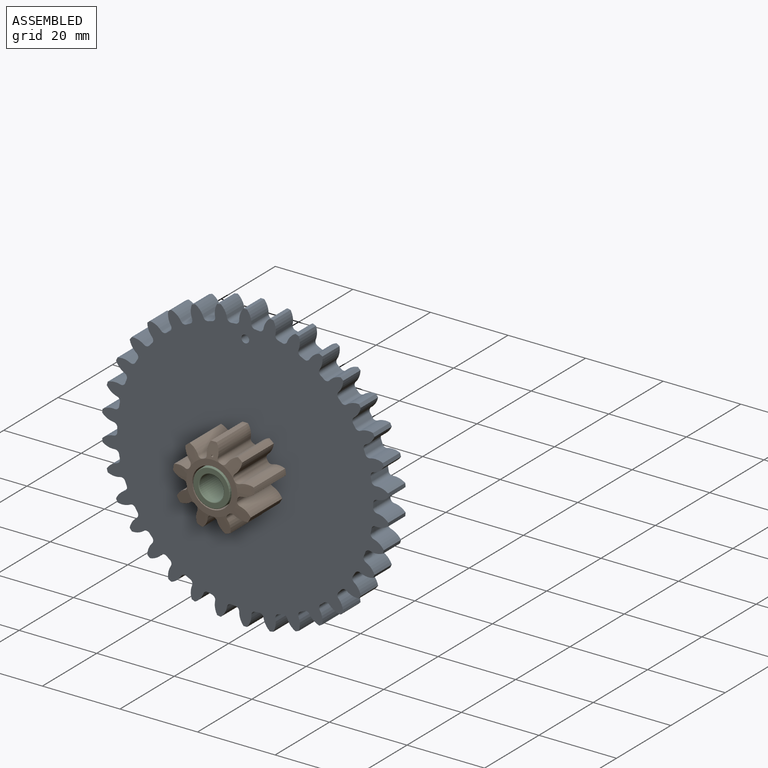
[diagram: assembled view]
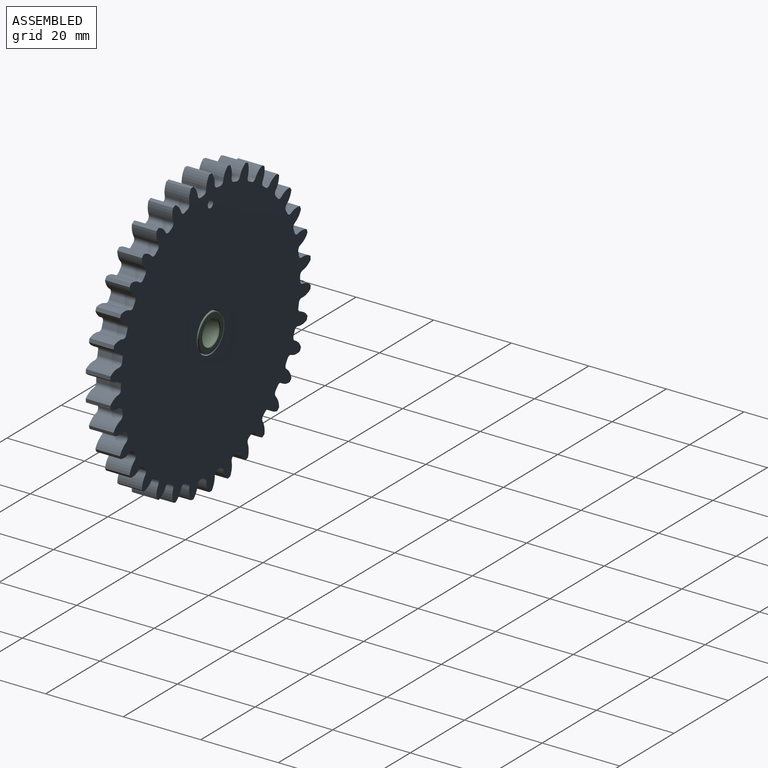
[diagram: assembled view, second angle]
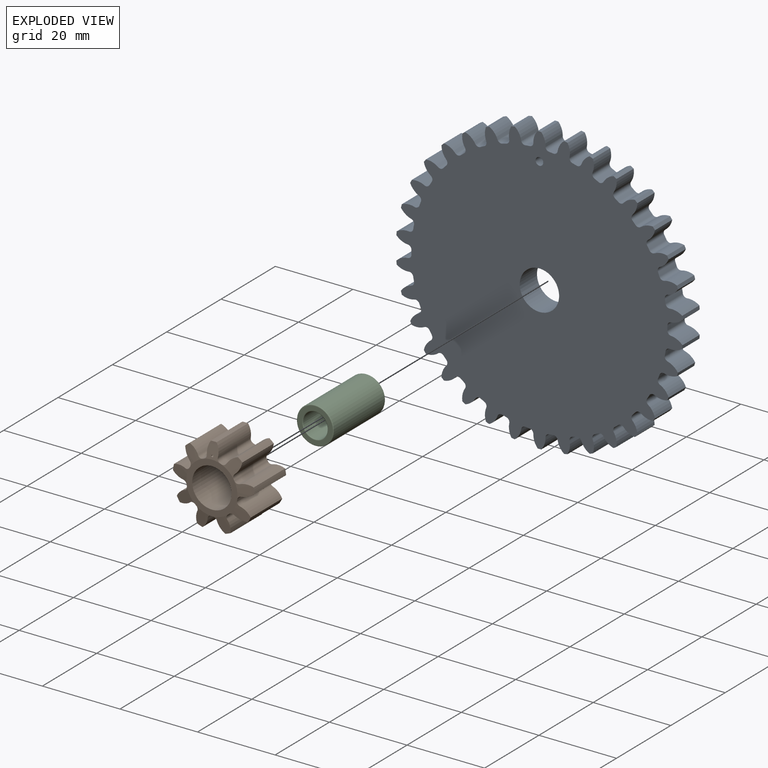
[diagram: exploded view]
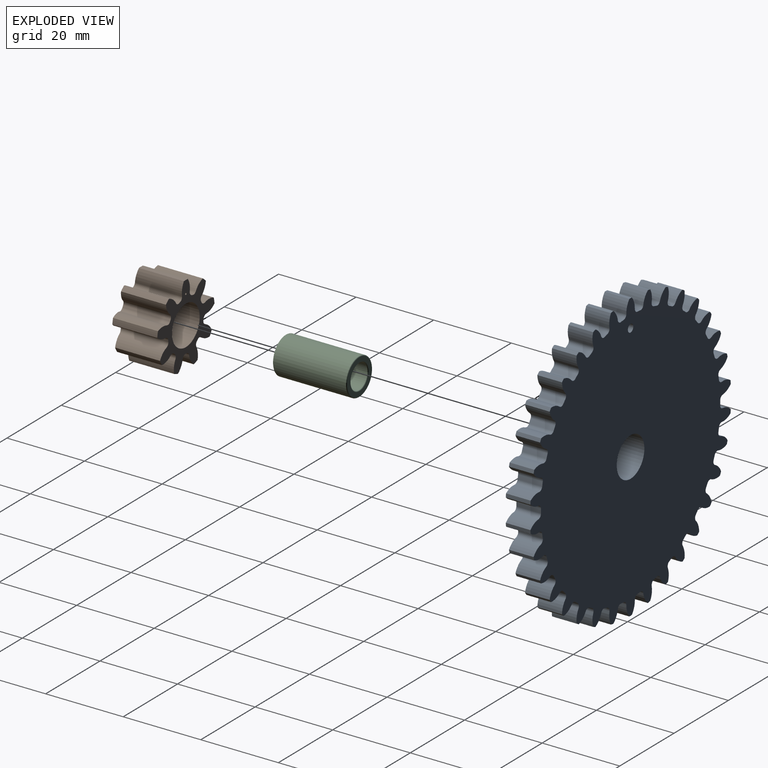
[diagram: exploded view, second angle]
ASSEMBLY  parts=3 mates=2
PART A: 208 faces, bbox 73.8x6.4x74 mm
  f0: cylinder r=33mm len=6.35mm, axis (0,1,0), area 7mm2, adj f34,f35,f40,f204
  f1: cylinder r=33mm len=6.35mm, axis (0,1,0), area 7mm2, adj f34,f35,f199,f205
  f2: cylinder r=33mm len=6.35mm, axis (0,1,0), area 7mm2, adj f34,f35,f194,f200
  f3: cylinder r=33mm len=6.35mm, axis (0,1,0), area 7mm2, adj f34,f35,f189,f195
  f4: cylinder r=33mm len=6.35mm, axis (0,1,0), area 7mm2, adj f34,f35,f184,f190
  f5: cylinder r=33mm len=6.35mm, axis (0,1,0), area 7mm2, adj f34,f35,f179,f185
  f6: cylinder r=33mm len=6.35mm, axis (0,1,0), area 7mm2, adj f34,f35,f174,f180
  f7: cylinder r=33mm len=6.35mm, axis (0,1,0), area 7mm2, adj f34,f35,f169,f175
  f8: cylinder r=33mm len=6.35mm, axis (0,1,0), area 7mm2, adj f34,f35,f164,f170
  f9: cylinder r=33mm len=6.35mm, axis (0,1,0), area 7mm2, adj f34,f35,f159,f165
  f10: cylinder r=33mm len=6.35mm, axis (0,1,0), area 7mm2, adj f34,f35,f154,f160
  f11: cylinder r=33mm len=6.35mm, axis (0,1,0), area 7mm2, adj f34,f35,f149,f155
  f12: cylinder r=33mm len=6.35mm, axis (0,1,0), area 7mm2, adj f34,f35,f144,f150
  f13: cylinder r=33mm len=6.35mm, axis (0,1,0), area 7mm2, adj f34,f35,f139,f145
  f14: cylinder r=33mm len=6.35mm, axis (0,1,0), area 7mm2, adj f34,f35,f134,f140
  f15: cylinder r=33mm len=6.35mm, axis (0,1,0), area 7mm2, adj f34,f35,f129,f135
  f16: cylinder r=33mm len=6.35mm, axis (0,1,0), area 7mm2, adj f34,f35,f124,f130
  f17: cylinder r=33mm len=6.35mm, axis (0,1,0), area 7mm2, adj f34,f35,f119,f125
  f18: cylinder r=33mm len=6.35mm, axis (0,1,0), area 7mm2, adj f34,f35,f114,f120
  f19: cylinder r=33mm len=6.35mm, axis (0,1,0), area 7mm2, adj f34,f35,f109,f115
  f20: cylinder r=33mm len=6.35mm, axis (0,1,0), area 7mm2, adj f34,f35,f104,f110
  f21: cylinder r=33mm len=6.35mm, axis (0,1,0), area 7mm2, adj f34,f35,f99,f105
  f22: cylinder r=33mm len=6.35mm, axis (0,1,0), area 7mm2, adj f34,f35,f94,f100
  f23: cylinder r=33mm len=6.35mm, axis (0,1,0), area 7mm2, adj f34,f35,f89,f95
  f24: cylinder r=33mm len=6.35mm, axis (0,1,0), area 7mm2, adj f34,f35,f84,f90
  f25: cylinder r=33mm len=6.35mm, axis (0,1,0), area 7mm2, adj f34,f35,f79,f85
  f26: cylinder r=33mm len=6.35mm, axis (0,1,0), area 7mm2, adj f34,f35,f74,f80
  f27: cylinder r=33mm len=6.35mm, axis (0,1,0), area 7mm2, adj f34,f35,f69,f75
  f28: cylinder r=33mm len=6.35mm, axis (0,1,0), area 7mm2, adj f34,f35,f64,f70
  f29: cylinder r=33mm len=6.35mm, axis (0,1,0), area 7mm2, adj f34,f35,f59,f65
  f30: cylinder r=33mm len=6.35mm, axis (0,1,0), area 7mm2, adj f34,f35,f54,f60
  f31: cylinder r=33mm len=6.35mm, axis (0,1,0), area 7mm2, adj f34,f35,f49,f55
  f32: cylinder r=33mm len=6.35mm, axis (0,1,0), area 7mm2, adj f34,f35,f44,f50
  f33: cylinder r=33mm len=6.35mm, axis (0,1,0), area 7mm2, adj f34,f35,f39,f45
  f34: plane 74x73.76mm, normal (0,-1,0), area 3706.2mm2, adj f0,f1,f2,f3,f4,f5,f6,f7
  f35: plane 74x73.76mm, normal (0,1,0), area 3706.2mm2, adj f0,f1,f2,f3,f4,f5,f6,f7
  f36: cylinder r=4.53mm len=6.35mm, axis (0,1,0), area 21.2mm2, adj f34,f35,f37,f40
  f37: cylinder r=37mm len=6.35mm, axis (0,1,0), area 5.8mm2, adj f34,f35,f36,f38
  f38: cylinder r=4.53mm len=6.35mm, axis (0,1,0), area 21.2mm2, adj f34,f35,f37,f39
  f39: cylinder r=1mm len=6.35mm, axis (0,1,0), area 9.6mm2, adj f33,f34,f35,f38
  f40: cylinder r=1mm len=6.35mm, axis (0,1,0), area 9.6mm2, adj f0,f34,f35,f36
  f41: cylinder r=4.53mm len=6.35mm, axis (0,1,0), area 21.2mm2, adj f34,f35,f42,f45
  f42: cylinder r=37mm len=6.35mm, axis (0,1,0), area 5.8mm2, adj f34,f35,f41,f43
  f43: cylinder r=4.53mm len=6.35mm, axis (0,1,0), area 21.2mm2, adj f34,f35,f42,f44
  f44: cylinder r=1mm len=6.35mm, axis (0,1,0), area 9.6mm2, adj f32,f34,f35,f43
  f45: cylinder r=1mm len=6.35mm, axis (0,1,0), area 9.6mm2, adj f33,f34,f35,f41
  f46: cylinder r=4.53mm len=6.35mm, axis (0,1,0), area 21.2mm2, adj f34,f35,f47,f50
  f47: cylinder r=37mm len=6.35mm, axis (0,1,0), area 5.8mm2, adj f34,f35,f46,f48
  f48: cylinder r=4.53mm len=6.35mm, axis (0,1,0), area 21.2mm2, adj f34,f35,f47,f49
  f49: cylinder r=1mm len=6.35mm, axis (0,1,0), area 9.6mm2, adj f31,f34,f35,f48
  f50: cylinder r=1mm len=6.35mm, axis (0,1,0), area 9.6mm2, adj f32,f34,f35,f46
  f51: cylinder r=4.53mm len=6.35mm, axis (0,1,0), area 21.2mm2, adj f34,f35,f52,f55
  f52: cylinder r=37mm len=6.35mm, axis (0,1,0), area 5.8mm2, adj f34,f35,f51,f53
  f53: cylinder r=4.53mm len=6.35mm, axis (0,1,0), area 21.2mm2, adj f34,f35,f52,f54
  f54: cylinder r=1mm len=6.35mm, axis (0,1,0), area 9.6mm2, adj f30,f34,f35,f53
  f55: cylinder r=1mm len=6.35mm, axis (0,1,0), area 9.6mm2, adj f31,f34,f35,f51
  f56: cylinder r=4.53mm len=6.35mm, axis (0,1,0), area 21.2mm2, adj f34,f35,f57,f60
  f57: cylinder r=37mm len=6.35mm, axis (0,1,0), area 5.8mm2, adj f34,f35,f56,f58
  f58: cylinder r=4.53mm len=6.35mm, axis (0,1,0), area 21.2mm2, adj f34,f35,f57,f59
  f59: cylinder r=1mm len=6.35mm, axis (0,1,0), area 9.6mm2, adj f29,f34,f35,f58
  f60: cylinder r=1mm len=6.35mm, axis (0,1,0), area 9.6mm2, adj f30,f34,f35,f56
  f61: cylinder r=4.53mm len=6.35mm, axis (0,1,0), area 21.2mm2, adj f34,f35,f62,f65
  f62: cylinder r=37mm len=6.35mm, axis (0,1,0), area 5.8mm2, adj f34,f35,f61,f63
  f63: cylinder r=4.53mm len=6.35mm, axis (0,1,0), area 21.2mm2, adj f34,f35,f62,f64
  f64: cylinder r=1mm len=6.35mm, axis (0,1,0), area 9.6mm2, adj f28,f34,f35,f63
  f65: cylinder r=1mm len=6.35mm, axis (0,1,0), area 9.6mm2, adj f29,f34,f35,f61
  f66: cylinder r=4.53mm len=6.35mm, axis (0,1,0), area 21.2mm2, adj f34,f35,f67,f70
  f67: cylinder r=37mm len=6.35mm, axis (0,1,0), area 5.8mm2, adj f34,f35,f66,f68
  f68: cylinder r=4.53mm len=6.35mm, axis (0,1,0), area 21.2mm2, adj f34,f35,f67,f69
  f69: cylinder r=1mm len=6.35mm, axis (0,1,0), area 9.6mm2, adj f27,f34,f35,f68
  f70: cylinder r=1mm len=6.35mm, axis (0,1,0), area 9.6mm2, adj f28,f34,f35,f66
  f71: cylinder r=4.53mm len=6.35mm, axis (0,1,0), area 21.2mm2, adj f34,f35,f72,f75
  f72: cylinder r=37mm len=6.35mm, axis (0,1,0), area 5.8mm2, adj f34,f35,f71,f73
  f73: cylinder r=4.53mm len=6.35mm, axis (0,1,0), area 21.2mm2, adj f34,f35,f72,f74
  f74: cylinder r=1mm len=6.35mm, axis (0,1,0), area 9.6mm2, adj f26,f34,f35,f73
  f75: cylinder r=1mm len=6.35mm, axis (0,1,0), area 9.6mm2, adj f27,f34,f35,f71
  f76: cylinder r=4.53mm len=6.35mm, axis (0,1,0), area 21.2mm2, adj f34,f35,f77,f80
  f77: cylinder r=37mm len=6.35mm, axis (0,1,0), area 5.8mm2, adj f34,f35,f76,f78
  f78: cylinder r=4.53mm len=6.35mm, axis (0,1,0), area 21.2mm2, adj f34,f35,f77,f79
  f79: cylinder r=1mm len=6.35mm, axis (0,1,0), area 9.6mm2, adj f25,f34,f35,f78
  f80: cylinder r=1mm len=6.35mm, axis (0,1,0), area 9.6mm2, adj f26,f34,f35,f76
  f81: cylinder r=4.53mm len=6.35mm, axis (0,1,0), area 21.2mm2, adj f34,f35,f82,f85
  f82: cylinder r=37mm len=6.35mm, axis (0,1,0), area 5.8mm2, adj f34,f35,f81,f83
  f83: cylinder r=4.53mm len=6.35mm, axis (0,1,0), area 21.2mm2, adj f34,f35,f82,f84
  f84: cylinder r=1mm len=6.35mm, axis (0,1,0), area 9.6mm2, adj f24,f34,f35,f83
  f85: cylinder r=1mm len=6.35mm, axis (0,1,0), area 9.6mm2, adj f25,f34,f35,f81
  f86: cylinder r=4.53mm len=6.35mm, axis (0,1,0), area 21.2mm2, adj f34,f35,f87,f90
  f87: cylinder r=37mm len=6.35mm, axis (0,1,0), area 5.8mm2, adj f34,f35,f86,f88
  f88: cylinder r=4.53mm len=6.35mm, axis (0,1,0), area 21.2mm2, adj f34,f35,f87,f89
  f89: cylinder r=1mm len=6.35mm, axis (0,1,0), area 9.6mm2, adj f23,f34,f35,f88
  f90: cylinder r=1mm len=6.35mm, axis (0,1,0), area 9.6mm2, adj f24,f34,f35,f86
  f91: cylinder r=4.53mm len=6.35mm, axis (0,1,0), area 21.2mm2, adj f34,f35,f92,f95
  f92: cylinder r=37mm len=6.35mm, axis (0,1,0), area 5.8mm2, adj f34,f35,f91,f93
  f93: cylinder r=4.53mm len=6.35mm, axis (0,1,0), area 21.2mm2, adj f34,f35,f92,f94
  f94: cylinder r=1mm len=6.35mm, axis (0,1,0), area 9.6mm2, adj f22,f34,f35,f93
  f95: cylinder r=1mm len=6.35mm, axis (0,1,0), area 9.6mm2, adj f23,f34,f35,f91
  f96: cylinder r=4.53mm len=6.35mm, axis (0,1,0), area 21.2mm2, adj f34,f35,f97,f100
  f97: cylinder r=37mm len=6.35mm, axis (0,1,0), area 5.8mm2, adj f34,f35,f96,f98
  f98: cylinder r=4.53mm len=6.35mm, axis (0,1,0), area 21.2mm2, adj f34,f35,f97,f99
  f99: cylinder r=1mm len=6.35mm, axis (0,1,0), area 9.6mm2, adj f21,f34,f35,f98
  f100: cylinder r=1mm len=6.35mm, axis (0,1,0), area 9.6mm2, adj f22,f34,f35,f96
  f101: cylinder r=4.53mm len=6.35mm, axis (0,1,0), area 21.2mm2, adj f34,f35,f102,f105
  f102: cylinder r=37mm len=6.35mm, axis (0,1,0), area 5.8mm2, adj f34,f35,f101,f103
  f103: cylinder r=4.53mm len=6.35mm, axis (0,1,0), area 21.2mm2, adj f34,f35,f102,f104
  f104: cylinder r=1mm len=6.35mm, axis (0,1,0), area 9.6mm2, adj f20,f34,f35,f103
  f105: cylinder r=1mm len=6.35mm, axis (0,1,0), area 9.6mm2, adj f21,f34,f35,f101
  f106: cylinder r=4.53mm len=6.35mm, axis (0,1,0), area 21.2mm2, adj f34,f35,f107,f110
  f107: cylinder r=37mm len=6.35mm, axis (0,1,0), area 5.8mm2, adj f34,f35,f106,f108
  f108: cylinder r=4.53mm len=6.35mm, axis (0,1,0), area 21.2mm2, adj f34,f35,f107,f109
  f109: cylinder r=1mm len=6.35mm, axis (0,1,0), area 9.6mm2, adj f19,f34,f35,f108
  f110: cylinder r=1mm len=6.35mm, axis (0,1,0), area 9.6mm2, adj f20,f34,f35,f106
  f111: cylinder r=4.53mm len=6.35mm, axis (0,1,0), area 21.2mm2, adj f34,f35,f112,f115
  f112: cylinder r=37mm len=6.35mm, axis (0,1,0), area 5.8mm2, adj f34,f35,f111,f113
  f113: cylinder r=4.53mm len=6.35mm, axis (0,1,0), area 21.2mm2, adj f34,f35,f112,f114
  f114: cylinder r=1mm len=6.35mm, axis (0,1,0), area 9.6mm2, adj f18,f34,f35,f113
  f115: cylinder r=1mm len=6.35mm, axis (0,1,0), area 9.6mm2, adj f19,f34,f35,f111
  f116: cylinder r=4.53mm len=6.35mm, axis (0,1,0), area 21.2mm2, adj f34,f35,f117,f120
  f117: cylinder r=37mm len=6.35mm, axis (0,1,0), area 5.8mm2, adj f34,f35,f116,f118
  f118: cylinder r=4.53mm len=6.35mm, axis (0,1,0), area 21.2mm2, adj f34,f35,f117,f119
  f119: cylinder r=1mm len=6.35mm, axis (0,1,0), area 9.6mm2, adj f17,f34,f35,f118
  f120: cylinder r=1mm len=6.35mm, axis (0,1,0), area 9.6mm2, adj f18,f34,f35,f116
  f121: cylinder r=4.53mm len=6.35mm, axis (0,1,0), area 21.2mm2, adj f34,f35,f122,f125
  f122: cylinder r=37mm len=6.35mm, axis (0,1,0), area 5.8mm2, adj f34,f35,f121,f123
  f123: cylinder r=4.53mm len=6.35mm, axis (0,1,0), area 21.2mm2, adj f34,f35,f122,f124
  f124: cylinder r=1mm len=6.35mm, axis (0,1,0), area 9.6mm2, adj f16,f34,f35,f123
  f125: cylinder r=1mm len=6.35mm, axis (0,1,0), area 9.6mm2, adj f17,f34,f35,f121
  f126: cylinder r=4.53mm len=6.35mm, axis (0,1,0), area 21.2mm2, adj f34,f35,f127,f130
  f127: cylinder r=37mm len=6.35mm, axis (0,1,0), area 5.8mm2, adj f34,f35,f126,f128
  f128: cylinder r=4.53mm len=6.35mm, axis (0,1,0), area 21.2mm2, adj f34,f35,f127,f129
  f129: cylinder r=1mm len=6.35mm, axis (0,1,0), area 9.6mm2, adj f15,f34,f35,f128
  f130: cylinder r=1mm len=6.35mm, axis (0,1,0), area 9.6mm2, adj f16,f34,f35,f126
  f131: cylinder r=4.53mm len=6.35mm, axis (0,1,0), area 21.2mm2, adj f34,f35,f132,f135
  f132: cylinder r=37mm len=6.35mm, axis (0,1,0), area 5.8mm2, adj f34,f35,f131,f133
  f133: cylinder r=4.53mm len=6.35mm, axis (0,1,0), area 21.2mm2, adj f34,f35,f132,f134
  f134: cylinder r=1mm len=6.35mm, axis (0,1,0), area 9.6mm2, adj f14,f34,f35,f133
  f135: cylinder r=1mm len=6.35mm, axis (0,1,0), area 9.6mm2, adj f15,f34,f35,f131
  f136: cylinder r=4.53mm len=6.35mm, axis (0,1,0), area 21.2mm2, adj f34,f35,f137,f140
  f137: cylinder r=37mm len=6.35mm, axis (0,1,0), area 5.8mm2, adj f34,f35,f136,f138
  f138: cylinder r=4.53mm len=6.35mm, axis (0,1,0), area 21.2mm2, adj f34,f35,f137,f139
  f139: cylinder r=1mm len=6.35mm, axis (0,1,0), area 9.6mm2, adj f13,f34,f35,f138
  f140: cylinder r=1mm len=6.35mm, axis (0,1,0), area 9.6mm2, adj f14,f34,f35,f136
  f141: cylinder r=4.53mm len=6.35mm, axis (0,1,0), area 21.2mm2, adj f34,f35,f142,f145
  f142: cylinder r=37mm len=6.35mm, axis (0,1,0), area 5.8mm2, adj f34,f35,f141,f143
  f143: cylinder r=4.53mm len=6.35mm, axis (0,1,0), area 21.2mm2, adj f34,f35,f142,f144
  f144: cylinder r=1mm len=6.35mm, axis (0,1,0), area 9.6mm2, adj f12,f34,f35,f143
  f145: cylinder r=1mm len=6.35mm, axis (0,1,0), area 9.6mm2, adj f13,f34,f35,f141
  f146: cylinder r=4.53mm len=6.35mm, axis (0,1,0), area 21.2mm2, adj f34,f35,f147,f150
  f147: cylinder r=37mm len=6.35mm, axis (0,1,0), area 5.8mm2, adj f34,f35,f146,f148
  f148: cylinder r=4.53mm len=6.35mm, axis (0,1,0), area 21.2mm2, adj f34,f35,f147,f149
  f149: cylinder r=1mm len=6.35mm, axis (0,1,0), area 9.6mm2, adj f11,f34,f35,f148
  f150: cylinder r=1mm len=6.35mm, axis (0,1,0), area 9.6mm2, adj f12,f34,f35,f146
  f151: cylinder r=4.53mm len=6.35mm, axis (0,1,0), area 21.2mm2, adj f34,f35,f152,f155
  f152: cylinder r=37mm len=6.35mm, axis (0,1,0), area 5.8mm2, adj f34,f35,f151,f153
  f153: cylinder r=4.53mm len=6.35mm, axis (0,1,0), area 21.2mm2, adj f34,f35,f152,f154
  f154: cylinder r=1mm len=6.35mm, axis (0,1,0), area 9.6mm2, adj f10,f34,f35,f153
  f155: cylinder r=1mm len=6.35mm, axis (0,1,0), area 9.6mm2, adj f11,f34,f35,f151
  f156: cylinder r=4.53mm len=6.35mm, axis (0,1,0), area 21.2mm2, adj f34,f35,f157,f160
  f157: cylinder r=37mm len=6.35mm, axis (0,1,0), area 5.8mm2, adj f34,f35,f156,f158
  f158: cylinder r=4.53mm len=6.35mm, axis (0,1,0), area 21.2mm2, adj f34,f35,f157,f159
  f159: cylinder r=1mm len=6.35mm, axis (0,1,0), area 9.6mm2, adj f9,f34,f35,f158
  f160: cylinder r=1mm len=6.35mm, axis (0,1,0), area 9.6mm2, adj f10,f34,f35,f156
  f161: cylinder r=4.53mm len=6.35mm, axis (0,1,0), area 21.2mm2, adj f34,f35,f162,f165
  f162: cylinder r=37mm len=6.35mm, axis (0,1,0), area 5.8mm2, adj f34,f35,f161,f163
  f163: cylinder r=4.53mm len=6.35mm, axis (0,1,0), area 21.2mm2, adj f34,f35,f162,f164
  f164: cylinder r=1mm len=6.35mm, axis (0,1,0), area 9.6mm2, adj f8,f34,f35,f163
  f165: cylinder r=1mm len=6.35mm, axis (0,1,0), area 9.6mm2, adj f9,f34,f35,f161
  f166: cylinder r=4.53mm len=6.35mm, axis (0,1,0), area 21.2mm2, adj f34,f35,f167,f170
  f167: cylinder r=37mm len=6.35mm, axis (0,1,0), area 5.8mm2, adj f34,f35,f166,f168
  f168: cylinder r=4.53mm len=6.35mm, axis (0,1,0), area 21.2mm2, adj f34,f35,f167,f169
  f169: cylinder r=1mm len=6.35mm, axis (0,1,0), area 9.6mm2, adj f7,f34,f35,f168
  f170: cylinder r=1mm len=6.35mm, axis (0,1,0), area 9.6mm2, adj f8,f34,f35,f166
  f171: cylinder r=4.53mm len=6.35mm, axis (0,1,0), area 21.2mm2, adj f34,f35,f172,f175
  f172: cylinder r=37mm len=6.35mm, axis (0,1,0), area 5.8mm2, adj f34,f35,f171,f173
  f173: cylinder r=4.53mm len=6.35mm, axis (0,1,0), area 21.2mm2, adj f34,f35,f172,f174
  f174: cylinder r=1mm len=6.35mm, axis (0,1,0), area 9.6mm2, adj f6,f34,f35,f173
  f175: cylinder r=1mm len=6.35mm, axis (0,1,0), area 9.6mm2, adj f7,f34,f35,f171
  f176: cylinder r=4.53mm len=6.35mm, axis (0,1,0), area 21.2mm2, adj f34,f35,f177,f180
  f177: cylinder r=37mm len=6.35mm, axis (0,1,0), area 5.8mm2, adj f34,f35,f176,f178
  f178: cylinder r=4.53mm len=6.35mm, axis (0,1,0), area 21.2mm2, adj f34,f35,f177,f179
  f179: cylinder r=1mm len=6.35mm, axis (0,1,0), area 9.6mm2, adj f5,f34,f35,f178
  f180: cylinder r=1mm len=6.35mm, axis (0,1,0), area 9.6mm2, adj f6,f34,f35,f176
  f181: cylinder r=4.53mm len=6.35mm, axis (0,1,0), area 21.2mm2, adj f34,f35,f182,f185
  f182: cylinder r=37mm len=6.35mm, axis (0,1,0), area 5.8mm2, adj f34,f35,f181,f183
  f183: cylinder r=4.53mm len=6.35mm, axis (0,1,0), area 21.2mm2, adj f34,f35,f182,f184
  f184: cylinder r=1mm len=6.35mm, axis (0,1,0), area 9.6mm2, adj f4,f34,f35,f183
  f185: cylinder r=1mm len=6.35mm, axis (0,1,0), area 9.6mm2, adj f5,f34,f35,f181
  f186: cylinder r=4.53mm len=6.35mm, axis (0,1,0), area 21.2mm2, adj f34,f35,f187,f190
  f187: cylinder r=37mm len=6.35mm, axis (0,1,0), area 5.8mm2, adj f34,f35,f186,f188
  f188: cylinder r=4.53mm len=6.35mm, axis (0,1,0), area 21.2mm2, adj f34,f35,f187,f189
  f189: cylinder r=1mm len=6.35mm, axis (0,1,0), area 9.6mm2, adj f3,f34,f35,f188
  f190: cylinder r=1mm len=6.35mm, axis (0,1,0), area 9.6mm2, adj f4,f34,f35,f186
  f191: cylinder r=4.53mm len=6.35mm, axis (0,1,0), area 21.2mm2, adj f34,f35,f192,f195
  f192: cylinder r=37mm len=6.35mm, axis (0,1,0), area 5.8mm2, adj f34,f35,f191,f193
  f193: cylinder r=4.53mm len=6.35mm, axis (0,1,0), area 21.2mm2, adj f34,f35,f192,f194
  f194: cylinder r=1mm len=6.35mm, axis (0,1,0), area 9.6mm2, adj f2,f34,f35,f193
  f195: cylinder r=1mm len=6.35mm, axis (0,1,0), area 9.6mm2, adj f3,f34,f35,f191
  f196: cylinder r=4.53mm len=6.35mm, axis (0,1,0), area 21.2mm2, adj f34,f35,f197,f200
  f197: cylinder r=37mm len=6.35mm, axis (0,1,0), area 5.8mm2, adj f34,f35,f196,f198
  f198: cylinder r=4.53mm len=6.35mm, axis (0,1,0), area 21.2mm2, adj f34,f35,f197,f199
  f199: cylinder r=1mm len=6.35mm, axis (0,1,0), area 9.6mm2, adj f1,f34,f35,f198
  f200: cylinder r=1mm len=6.35mm, axis (0,1,0), area 9.6mm2, adj f2,f34,f35,f196
  f201: cylinder r=4.53mm len=6.35mm, axis (0,1,0), area 21.2mm2, adj f34,f35,f202,f205
  f202: cylinder r=37mm len=6.35mm, axis (0,1,0), area 5.8mm2, adj f34,f35,f201,f203
  f203: cylinder r=4.53mm len=6.35mm, axis (0,1,0), area 21.2mm2, adj f34,f35,f202,f204
  f204: cylinder r=1mm len=6.35mm, axis (0,1,0), area 9.6mm2, adj f0,f34,f35,f203
  f205: cylinder r=1mm len=6.35mm, axis (0,1,0), area 9.6mm2, adj f1,f34,f35,f201
  f206: cylinder r=5.08mm len=10.16mm, axis (0,-1,0), area 202.7mm2, adj f34,f35
  f207: cylinder r=1mm len=6.35mm, axis (0,-1,0), area 39.9mm2, adj f34,f35
PART B: 67 faces, bbox 21.2x12.3x21.2 mm
  f0: plane 13.18x13.18mm, normal (0,-1,0), area 55.4mm2, adj f1,f2,f3,f4,f5,f6,f7,f8
  f1: cylinder r=6.59mm len=12.29mm, axis (0,1,0), area 4.3mm2, adj f0,f10,f15,f54
  f2: cylinder r=6.59mm len=12.29mm, axis (0,1,0), area 4.3mm2, adj f0,f10,f49,f55
  f3: cylinder r=6.59mm len=12.29mm, axis (0,1,0), area 4.3mm2, adj f0,f10,f44,f50
  f4: cylinder r=6.59mm len=12.29mm, axis (0,1,0), area 4.3mm2, adj f0,f10,f39,f45
  f5: cylinder r=6.59mm len=12.29mm, axis (0,1,0), area 4.3mm2, adj f0,f10,f34,f40
  f6: cylinder r=6.59mm len=12.29mm, axis (0,1,0), area 4.3mm2, adj f0,f10,f29,f35
  f7: cylinder r=6.59mm len=12.29mm, axis (0,1,0), area 4.3mm2, adj f0,f10,f24,f30
  f8: cylinder r=6.59mm len=12.29mm, axis (0,1,0), area 4.3mm2, adj f0,f10,f19,f25
  f9: cylinder r=6.59mm len=12.29mm, axis (0,1,0), area 4.3mm2, adj f0,f10,f14,f20
  f10: plane 21.06x20.77mm, normal (0,1,0), area 152.8mm2, adj f1,f2,f3,f4,f5,f6,f7,f8
  f11: cylinder r=4.44mm len=12.13mm, axis (0,1,0), area 39.7mm2, adj f10,f12,f15,f64
  f12: cylinder r=10.59mm len=11.59mm, axis (0,1,0), area 17.1mm2, adj f10,f11,f13,f64
  f13: cylinder r=4.44mm len=12.13mm, axis (0,1,0), area 39.7mm2, adj f10,f12,f14,f64
  f14: cylinder r=1mm len=12.29mm, axis (0,1,0), area 17.3mm2, adj f9,f10,f13,f64
  f15: cylinder r=1mm len=12.29mm, axis (0,1,0), area 17.3mm2, adj f1,f10,f11,f64
  f16: cylinder r=4.44mm len=12.13mm, axis (0,1,0), area 39.7mm2, adj f10,f17,f20,f63
  f17: cylinder r=10.59mm len=11.59mm, axis (0,1,0), area 17.1mm2, adj f10,f16,f18,f63
  f18: cylinder r=4.44mm len=12.13mm, axis (0,1,0), area 39.7mm2, adj f10,f17,f19,f63
  f19: cylinder r=1mm len=12.29mm, axis (0,1,0), area 17.3mm2, adj f8,f10,f18,f63
  f20: cylinder r=1mm len=12.29mm, axis (0,1,0), area 17.3mm2, adj f9,f10,f16,f63
  f21: cylinder r=4.44mm len=12.13mm, axis (0,1,0), area 39.7mm2, adj f10,f22,f25,f62
  f22: cylinder r=10.59mm len=11.59mm, axis (0,1,0), area 17.1mm2, adj f10,f21,f23,f62
  f23: cylinder r=4.44mm len=12.13mm, axis (0,1,0), area 39.7mm2, adj f10,f22,f24,f62
  f24: cylinder r=1mm len=12.29mm, axis (0,1,0), area 17.3mm2, adj f7,f10,f23,f62
  f25: cylinder r=1mm len=12.29mm, axis (0,1,0), area 17.3mm2, adj f8,f10,f21,f62
  f26: cylinder r=4.44mm len=12.13mm, axis (0,1,0), area 39.7mm2, adj f10,f27,f30,f61
  f27: cylinder r=10.59mm len=11.59mm, axis (0,1,0), area 17.1mm2, adj f10,f26,f28,f61
  f28: cylinder r=4.44mm len=12.13mm, axis (0,1,0), area 39.7mm2, adj f10,f27,f29,f61
  f29: cylinder r=1mm len=12.29mm, axis (0,1,0), area 17.3mm2, adj f6,f10,f28,f61
  f30: cylinder r=1mm len=12.29mm, axis (0,1,0), area 17.3mm2, adj f7,f10,f26,f61
  f31: cylinder r=4.44mm len=12.13mm, axis (0,1,0), area 39.7mm2, adj f10,f32,f35,f60
  f32: cylinder r=10.59mm len=11.59mm, axis (0,1,0), area 17.1mm2, adj f10,f31,f33,f60
  f33: cylinder r=4.44mm len=12.13mm, axis (0,1,0), area 39.7mm2, adj f10,f32,f34,f60
  f34: cylinder r=1mm len=12.29mm, axis (0,1,0), area 17.3mm2, adj f5,f10,f33,f60
  f35: cylinder r=1mm len=12.29mm, axis (0,1,0), area 17.3mm2, adj f6,f10,f31,f60
  f36: cylinder r=4.44mm len=12.13mm, axis (0,1,0), area 39.7mm2, adj f10,f37,f40,f59
  f37: cylinder r=10.59mm len=11.59mm, axis (0,1,0), area 17.1mm2, adj f10,f36,f38,f59
  f38: cylinder r=4.44mm len=12.13mm, axis (0,1,0), area 39.7mm2, adj f10,f37,f39,f59
  f39: cylinder r=1mm len=12.29mm, axis (0,1,0), area 17.3mm2, adj f4,f10,f38,f59
  f40: cylinder r=1mm len=12.29mm, axis (0,1,0), area 17.3mm2, adj f5,f10,f36,f59
  f41: cylinder r=4.44mm len=12.13mm, axis (0,1,0), area 39.7mm2, adj f10,f42,f45,f58
  f42: cylinder r=10.59mm len=11.59mm, axis (0,1,0), area 17.1mm2, adj f10,f41,f43,f58
  f43: cylinder r=4.44mm len=12.13mm, axis (0,1,0), area 39.7mm2, adj f10,f42,f44,f58
  f44: cylinder r=1mm len=12.29mm, axis (0,1,0), area 17.3mm2, adj f3,f10,f43,f58
  f45: cylinder r=1mm len=12.29mm, axis (0,1,0), area 17.3mm2, adj f4,f10,f41,f58
  f46: cylinder r=4.44mm len=12.13mm, axis (0,1,0), area 39.7mm2, adj f10,f47,f50,f57
  f47: cylinder r=10.59mm len=11.59mm, axis (0,1,0), area 17.1mm2, adj f10,f46,f48,f57
  f48: cylinder r=4.44mm len=12.13mm, axis (0,1,0), area 39.7mm2, adj f10,f47,f49,f57
  f49: cylinder r=1mm len=12.29mm, axis (0,1,0), area 17.3mm2, adj f2,f10,f48,f57
  f50: cylinder r=1mm len=12.29mm, axis (0,1,0), area 17.3mm2, adj f3,f10,f46,f57
  f51: cylinder r=4.44mm len=12.13mm, axis (0,1,0), area 39.7mm2, adj f10,f52,f55,f56
  f52: cylinder r=10.59mm len=11.59mm, axis (0,1,0), area 17.1mm2, adj f10,f51,f53,f56
  f53: cylinder r=4.44mm len=12.13mm, axis (0,1,0), area 39.7mm2, adj f10,f52,f54,f56
  f54: cylinder r=1mm len=12.29mm, axis (0,1,0), area 17.3mm2, adj f1,f10,f53,f56
  f55: cylinder r=1mm len=12.29mm, axis (0,1,0), area 17.3mm2, adj f2,f10,f51,f56
  f56: cone r=10.71mm half-angle=80deg, axis (0,1,0), area 11mm2, adj f0,f51,f52,f53,f54,f55
  f57: cone r=10.71mm half-angle=80deg, axis (0,1,0), area 11mm2, adj f0,f46,f47,f48,f49,f50
  f58: cone r=10.71mm half-angle=80deg, axis (0,1,0), area 11mm2, adj f0,f41,f42,f43,f44,f45
  f59: cone r=10.71mm half-angle=80deg, axis (0,1,0), area 11mm2, adj f0,f36,f37,f38,f39,f40
  f60: cone r=10.71mm half-angle=80deg, axis (0,1,0), area 11mm2, adj f0,f31,f32,f33,f34,f35
  f61: cone r=10.71mm half-angle=80deg, axis (0,1,0), area 11mm2, adj f0,f26,f27,f28,f29,f30
  f62: cone r=10.71mm half-angle=80deg, axis (0,1,0), area 11mm2, adj f0,f21,f22,f23,f24,f25
  f63: cone r=10.71mm half-angle=80deg, axis (0,1,0), area 11mm2, adj f0,f16,f17,f18,f19,f20
  f64: cone r=10.71mm half-angle=80deg, axis (0,1,0), area 10.8mm2, adj f0,f11,f12,f13,f14,f15,f66
  f65: cylinder r=5.08mm len=12.29mm, axis (0,-1,0), area 392.4mm2, adj f0,f10
  f66: cylinder r=0.25mm len=12.2mm, axis (0,-1,0), area 19.1mm2, adj f10,f64
PART C: 8 faces, bbox 10.3x19.1x10.3 mm
  f0: cylinder r=3.17mm len=18.64mm, axis (0,1,0), area 371.9mm2, adj f4,f6
  f1: cylinder r=4.76mm len=18.64mm, axis (0,1,0), area 557.9mm2, adj f5,f7
  f2: plane 9.12x9.12mm, normal (0,-1,0), area 29.5mm2, adj f6,f7
  f3: plane 9.12x9.12mm, normal (0,1,0), area 29.5mm2, adj f4,f5
  f4: torus R=3.38mm, axis (0,-1,0), area 6.5mm2, adj f0,f3
  f5: torus R=4.56mm, axis (0,-1,0), area 9.4mm2, adj f1,f3
  f6: torus R=3.38mm, axis (0,-1,0), area 6.5mm2, adj f0,f2
  f7: torus R=4.56mm, axis (0,-1,0), area 9.4mm2, adj f1,f2
PLACE A t=(0,9.32,0)mm
PLACE B at identity fixed
PLACE C t=(0,12.7,0)mm
MATE fastened A.f0 <-> B.f1  axis (0,-1,0) through (0,6.15,0)mm
MATE fastened C.f0 <-> B.f27  axis (0,-1,0) through (0,-6.35,0)mm
